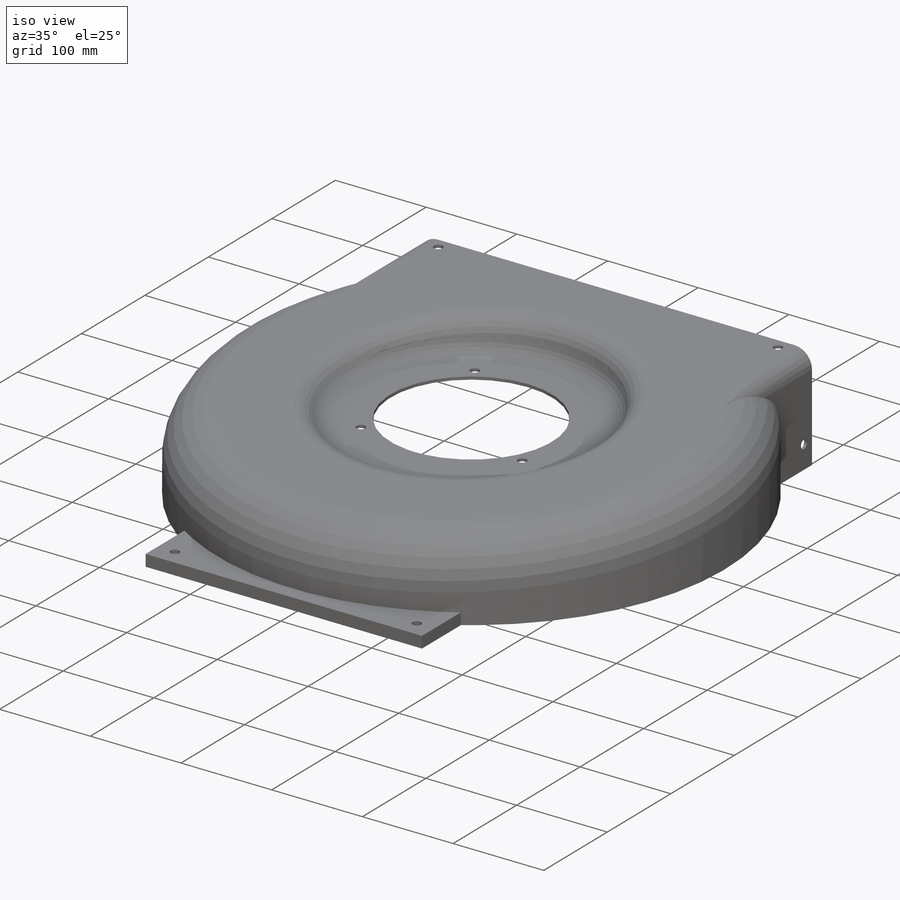
[diagram: iso view]
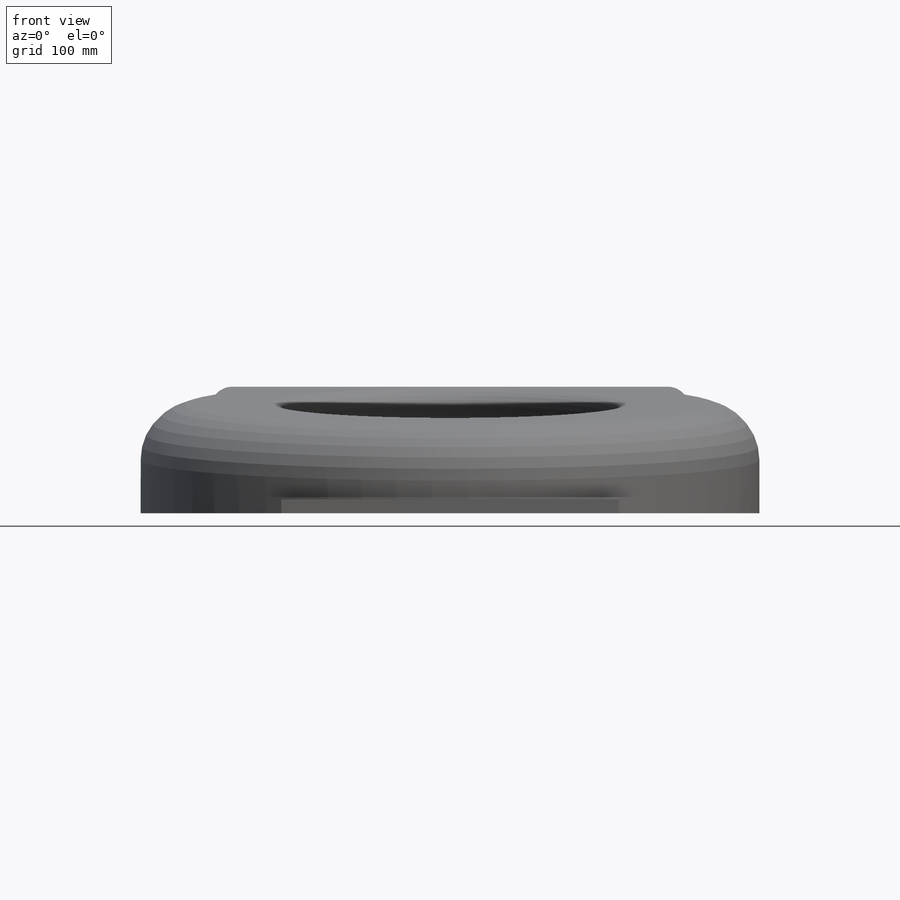
[diagram: front view]
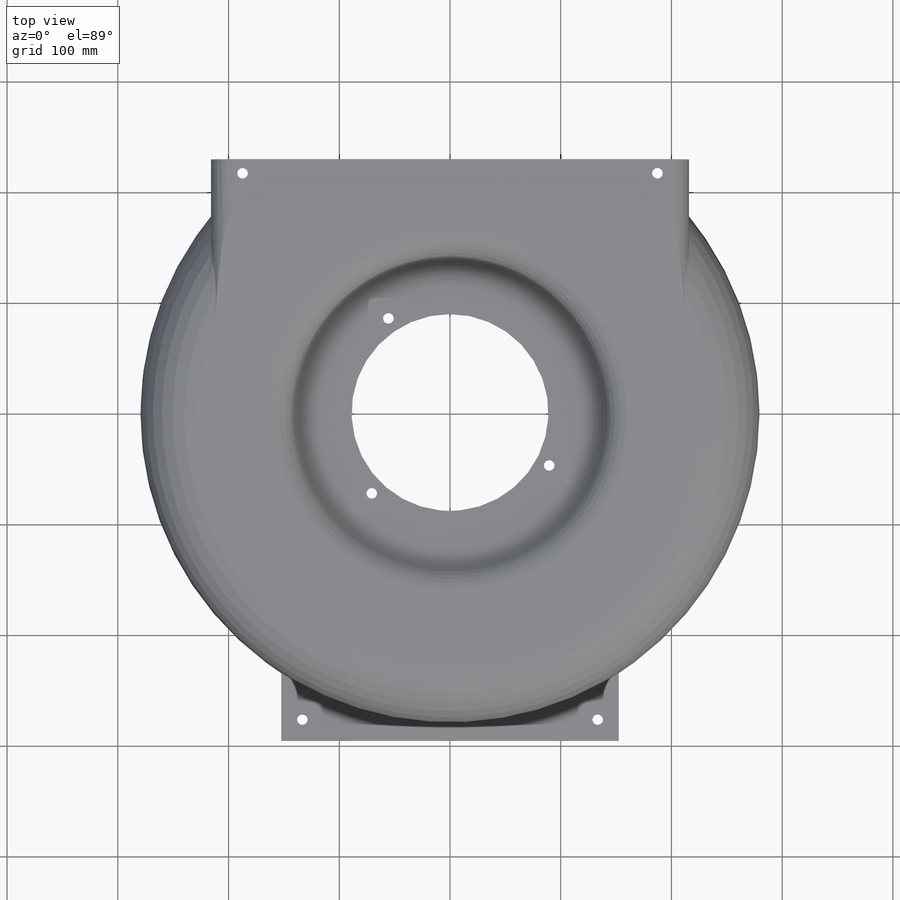
[diagram: top view]
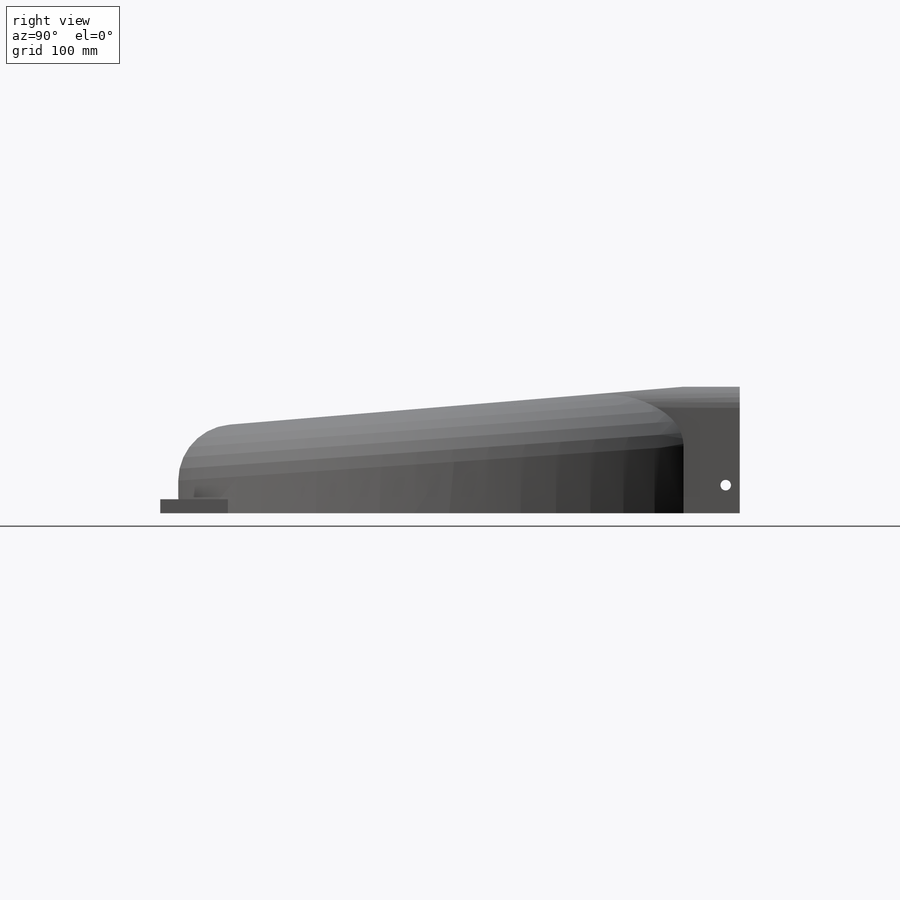
[diagram: right view]
SOLIDWORKS PART (.sldprt)
format: sldprt  version: not decoded by parser v0  size: 522,240 bytes
history: native  units: mm
features: sketch x10, fillet x4, hole x2, material x1, extrude x1, shell x1 (+11 scaffold rows collapsed)
feature tree (30):
  scaffold x11  (default folders/planes/origin — collapsed)
  material  "AISI 4340 Steel, normalized"
  sketch  "Sketch1"  dims[c1.D1=558.8mm c1.D2=279.4mm c1.D3=177.8mm c1.D6=203.2mm c1.D4=431.8mm c1.D5=50.8mm c1.D7=76.2mm c1.D8=158.75mm c1.D9=196.85mm c2.D8=~211.978263mm]
  extrude  "Base"  Depth=127mm
  sketch  "Sketch4"  dims[c1.D1=0.0mm c1.D2=0.0mm c1.D3=0.0mm c1.D4=0.0mm c2.D1=50.8mm]
  sketch  "Sketch5"  dims[c1.D1=101.6mm c1.D2=76.2mm c1.D3=114.3mm c1.D4=~118.343462mm c2.D3=114.3mm c2.D1=101.6mm c3.D3=114.3mm c3.D4=533.4mm c3.D1=762.0mm]
  fillet  "Outside Fillet1"  Radius=19.05mm
  fillet  "Outside Fillet2"  Radius=50.8mm
  fillet  "Inside Fillet"  Radius=25.4mm
  fillet  "Inside Bottom Fillet"  Radius=19.05mm
  shell  "In Shell"  Thickness=3.175mm
  sketch  "Sketch9"  dims[c1.D1=304.8mm c1.D2=19.05mm c2.D1=12.7mm]
  sketch  "Hole Back Top Sketch"  dims[D1=374.65mm D2=12.7mm]
  sketch  "Hole Back Side Sketch"  dims[D1=25.4mm]
  sketch  "Hole Front Top Sketch"  dims[D1=266.7mm D2=19.05mm]
  hole  "3/8 (0.375) Diameter Hole3"  Diameter=9.525mm Depth=495.3mm
  sketch  "3DSketch2"
  sketch  "Sketch15"  dims[hole-wizard template sketch: 60 standard entries collapsed; hole parameters kept: c18.Thru Hole Depth=495.3mm]
  sketch  "Sketch17"  dims[D1=0.0mm D2=0.0mm D3=0.0mm]
  hole  "Engine Hole"  [1 undecoded]
decode coverage: 16 of 18 modeling features carry decoded parameters
note: ~ marks probable driven/reference dimensions
note: 1 parameter value undecoded
note: suppression state not decoded; provenance and decode notes live in map.json
